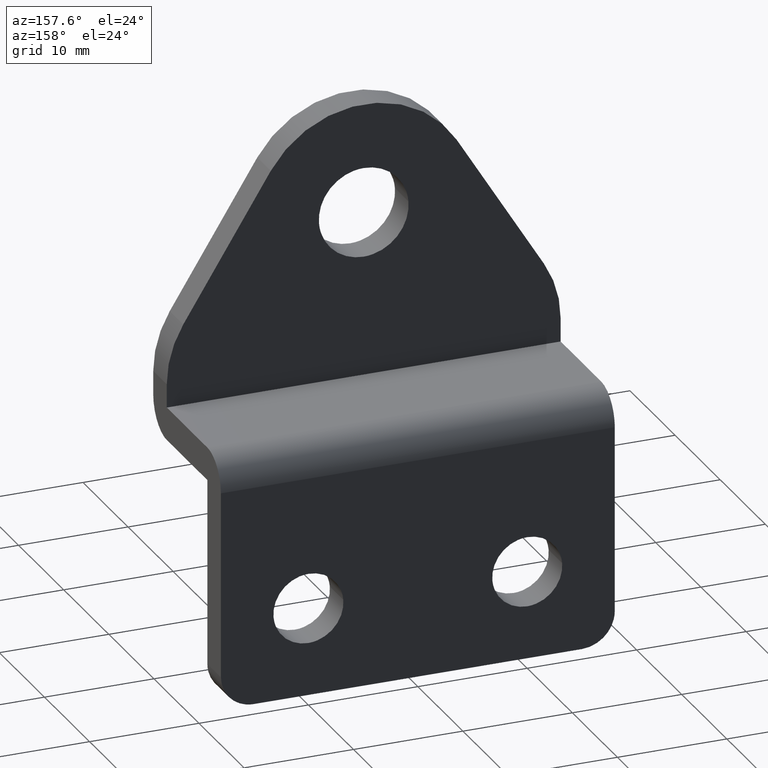
[diagram: clean part render]
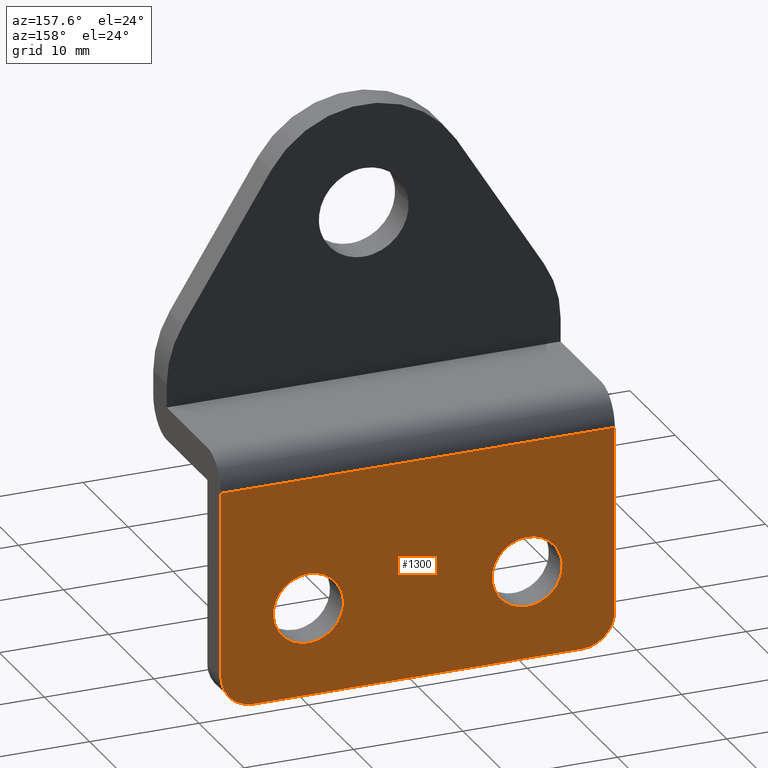
[diagram: same view with one face highlighted and labeled with its STEP entity id]
A machine part, auxiliary view. The second image highlights one B-rep face of the part: STEP entity #1300.
In plain terms, the highlighted face is a freeform B-spline surface patch.
Its self-contained STEP definition (entity closure, byte-faithful):
#79=CARTESIAN_POINT('',(-13.190142467944270,-5.551115E-017,8.251069106351242));
#80=VERTEX_POINT('',#79);
#86=CARTESIAN_POINT('',(-10.000007000000000,0.0,11.199999999999999));
#87=VERTEX_POINT('',#86);
#88=CARTESIAN_POINT('',(-10.000007000000000,0.0,11.199999999999999));
#89=CARTESIAN_POINT('',(-12.958056573265079,0.0,11.200000000000001));
#90=CARTESIAN_POINT('',(-13.190142467944266,-5.551115E-017,8.251069106351242));
#98=(BOUNDED_CURVE()B_SPLINE_CURVE(2,(#88,#89,#90),.UNSPECIFIED.,.F.,.U.)B_SPLINE_CURVE_WITH_KNOTS((3,3),(0.0,0.236331300630387),.UNSPECIFIED.)CURVE()GEOMETRIC_REPRESENTATION_ITEM()RATIONAL_B_SPLINE_CURVE((1.0,0.723120658607984,0.969723356166850))REPRESENTATION_ITEM(''));
#99=EDGE_CURVE('',#87,#80,#98,.T.);
#101=CARTESIAN_POINT('',(-6.809871532055734,-5.551115E-017,7.748930893648756));
#102=VERTEX_POINT('',#101);
#103=CARTESIAN_POINT('',(-6.809871532055734,-5.551115E-017,7.748930893648756));
#104=CARTESIAN_POINT('',(-6.800007000000000,0.0,7.874271657553215));
#105=CARTESIAN_POINT('',(-6.800007000000000,0.0,8.0));
#106=CARTESIAN_POINT('',(-6.800007000000001,0.0,11.199999999999999));
#107=CARTESIAN_POINT('',(-10.000007000000000,0.0,11.199999999999999));
#115=(BOUNDED_CURVE()B_SPLINE_CURVE(2,(#103,#104,#105,#106,#107),.UNSPECIFIED.,.F.,.U.)B_SPLINE_CURVE_WITH_KNOTS((3,2,3),(0.736331300630388,0.750000000000000,1.0),.UNSPECIFIED.)CURVE()GEOMETRIC_REPRESENTATION_ITEM()RATIONAL_B_SPLINE_CURVE((0.969723356166850,0.983986122578563,1.0,0.707106781186548,1.0))REPRESENTATION_ITEM(''));
#116=EDGE_CURVE('',#102,#87,#115,.T.);
#192=CARTESIAN_POINT('',(-10.000007000000000,0.0,4.800000000000001));
#193=VERTEX_POINT('',#192);
#194=CARTESIAN_POINT('',(-10.000007000000000,0.0,4.800000000000001));
#195=CARTESIAN_POINT('',(-7.041957426734915,0.0,4.800000000000001));
#196=CARTESIAN_POINT('',(-6.809871532055734,-5.551115E-017,7.748930893648756));
#204=(BOUNDED_CURVE()B_SPLINE_CURVE(2,(#194,#195,#196),.UNSPECIFIED.,.F.,.U.)B_SPLINE_CURVE_WITH_KNOTS((3,3),(0.500000000000000,0.736331300630388),.UNSPECIFIED.)CURVE()GEOMETRIC_REPRESENTATION_ITEM()RATIONAL_B_SPLINE_CURVE((1.0,0.723120658607984,0.969723356166851))REPRESENTATION_ITEM(''));
#205=EDGE_CURVE('',#193,#102,#204,.T.);
#207=CARTESIAN_POINT('',(-13.190142467944264,-5.551115E-017,8.251069106351242));
#208=CARTESIAN_POINT('',(-13.200006999999998,0.0,8.125728342446784));
#209=CARTESIAN_POINT('',(-13.200006999999999,0.0,8.0));
#210=CARTESIAN_POINT('',(-13.200006999999999,0.0,4.800000000000001));
#211=CARTESIAN_POINT('',(-10.000007000000000,0.0,4.800000000000001));
#219=(BOUNDED_CURVE()B_SPLINE_CURVE(2,(#207,#208,#209,#210,#211),.UNSPECIFIED.,.F.,.U.)B_SPLINE_CURVE_WITH_KNOTS((3,2,3),(0.236331300630388,0.250000000000000,0.500000000000000),.UNSPECIFIED.)CURVE()GEOMETRIC_REPRESENTATION_ITEM()RATIONAL_B_SPLINE_CURVE((0.969723356166850,0.983986122578563,1.0,0.707106781186548,1.0))REPRESENTATION_ITEM(''));
#220=EDGE_CURVE('',#80,#193,#219,.T.);
#261=CARTESIAN_POINT('',(6.809864532055734,-5.551115E-017,8.251069106351244));
#262=VERTEX_POINT('',#261);
#268=CARTESIAN_POINT('',(10.0,0.0,11.199999999999999));
#269=VERTEX_POINT('',#268);
#270=CARTESIAN_POINT('',(10.0,0.0,11.199999999999999));
#271=CARTESIAN_POINT('',(7.041950426734925,0.0,11.199999999999999));
#272=CARTESIAN_POINT('',(6.809864532055734,-5.551115E-017,8.251069106351244));
#280=(BOUNDED_CURVE()B_SPLINE_CURVE(2,(#270,#271,#272),.UNSPECIFIED.,.F.,.U.)B_SPLINE_CURVE_WITH_KNOTS((3,3),(0.0,0.236331300630387),.UNSPECIFIED.)CURVE()GEOMETRIC_REPRESENTATION_ITEM()RATIONAL_B_SPLINE_CURVE((1.0,0.723120658607984,0.969723356166850))REPRESENTATION_ITEM(''));
#281=EDGE_CURVE('',#269,#262,#280,.T.);
#283=CARTESIAN_POINT('',(13.190135467944270,-5.551115E-017,7.748930893648756));
#284=VERTEX_POINT('',#283);
#285=CARTESIAN_POINT('',(13.190135467944268,-5.551115E-017,7.748930893648756));
#286=CARTESIAN_POINT('',(13.199999999999996,0.0,7.874271657553215));
#287=CARTESIAN_POINT('',(13.199999999999999,0.0,8.0));
#288=CARTESIAN_POINT('',(13.199999999999998,0.0,11.199999999999999));
#289=CARTESIAN_POINT('',(10.0,0.0,11.199999999999999));
#297=(BOUNDED_CURVE()B_SPLINE_CURVE(2,(#285,#286,#287,#288,#289),.UNSPECIFIED.,.F.,.U.)B_SPLINE_CURVE_WITH_KNOTS((3,2,3),(0.736331300630388,0.750000000000000,1.0),.UNSPECIFIED.)CURVE()GEOMETRIC_REPRESENTATION_ITEM()RATIONAL_B_SPLINE_CURVE((0.969723356166850,0.983986122578563,1.0,0.707106781186548,1.0))REPRESENTATION_ITEM(''));
#298=EDGE_CURVE('',#284,#269,#297,.T.);
#374=CARTESIAN_POINT('',(10.0,0.0,4.800000000000001));
#375=VERTEX_POINT('',#374);
#376=CARTESIAN_POINT('',(10.0,0.0,4.800000000000001));
#377=CARTESIAN_POINT('',(12.958049573265084,0.0,4.800000000000001));
#378=CARTESIAN_POINT('',(13.190135467944266,-5.551115E-017,7.748930893648756));
#386=(BOUNDED_CURVE()B_SPLINE_CURVE(2,(#376,#377,#378),.UNSPECIFIED.,.F.,.U.)B_SPLINE_CURVE_WITH_KNOTS((3,3),(0.500000000000000,0.736331300630388),.UNSPECIFIED.)CURVE()GEOMETRIC_REPRESENTATION_ITEM()RATIONAL_B_SPLINE_CURVE((1.0,0.723120658607984,0.969723356166851))REPRESENTATION_ITEM(''));
#387=EDGE_CURVE('',#375,#284,#386,.T.);
#389=CARTESIAN_POINT('',(6.809864532055734,-5.551115E-017,8.251069106351244));
#390=CARTESIAN_POINT('',(6.800000000000001,0.0,8.125728342446784));
#391=CARTESIAN_POINT('',(6.800000000000001,0.0,8.0));
#392=CARTESIAN_POINT('',(6.800000000000002,0.0,4.800000000000001));
#393=CARTESIAN_POINT('',(10.0,0.0,4.800000000000001));
#401=(BOUNDED_CURVE()B_SPLINE_CURVE(2,(#389,#390,#391,#392,#393),.UNSPECIFIED.,.F.,.U.)B_SPLINE_CURVE_WITH_KNOTS((3,2,3),(0.236331300630387,0.250000000000000,0.500000000000000),.UNSPECIFIED.)CURVE()GEOMETRIC_REPRESENTATION_ITEM()RATIONAL_B_SPLINE_CURVE((0.969723356166850,0.983986122578563,1.0,0.707106781186548,1.0))REPRESENTATION_ITEM(''));
#402=EDGE_CURVE('',#262,#375,#401,.T.);
#848=CARTESIAN_POINT('',(15.0,0.0,0.0));
#849=VERTEX_POINT('',#848);
#855=CARTESIAN_POINT('',(18.0,0.0,3.0));
#856=VERTEX_POINT('',#855);
#857=CARTESIAN_POINT('',(18.0,0.0,3.0));
#858=CARTESIAN_POINT('',(18.000000000000007,0.0,0.0));
#859=CARTESIAN_POINT('',(15.0,0.0,0.0));
#867=(BOUNDED_CURVE()B_SPLINE_CURVE(2,(#857,#858,#859),.UNSPECIFIED.,.F.,.U.)CURVE()GEOMETRIC_REPRESENTATION_ITEM()QUASI_UNIFORM_CURVE()RATIONAL_B_SPLINE_CURVE((1.0,0.707106781186548,1.0))REPRESENTATION_ITEM(''));
#868=EDGE_CURVE('',#856,#849,#867,.T.);
#909=CARTESIAN_POINT('',(-18.000007000000000,0.0,3.0));
#910=VERTEX_POINT('',#909);
#916=CARTESIAN_POINT('',(-15.000007000000050,0.0,0.0));
#917=VERTEX_POINT('',#916);
#918=CARTESIAN_POINT('',(-15.000007000000050,0.0,0.0));
#919=CARTESIAN_POINT('',(-18.000007000000050,0.0,0.0));
#920=CARTESIAN_POINT('',(-18.000007000000050,0.0,3.0));
#928=(BOUNDED_CURVE()B_SPLINE_CURVE(2,(#918,#919,#920),.UNSPECIFIED.,.F.,.U.)CURVE()GEOMETRIC_REPRESENTATION_ITEM()QUASI_UNIFORM_CURVE()RATIONAL_B_SPLINE_CURVE((1.0,0.707106781186548,1.0))REPRESENTATION_ITEM(''));
#929=EDGE_CURVE('',#917,#910,#928,.T.);
#1016=CARTESIAN_POINT('',(-18.000007000000000,0.0,20.0));
#1017=VERTEX_POINT('',#1016);
#1038=CARTESIAN_POINT('',(18.0,0.0,20.0));
#1039=VERTEX_POINT('',#1038);
#1053=CARTESIAN_POINT('',(-18.000007000000000,0.0,20.0));
#1054=CARTESIAN_POINT('',(18.0,0.0,20.0));
#1055=QUASI_UNIFORM_CURVE('',1,(#1053,#1054),.UNSPECIFIED.,.F.,.U.);
#1056=EDGE_CURVE('',#1017,#1039,#1055,.T.);
#1093=CARTESIAN_POINT('',(18.0,0.0,3.0));
#1094=CARTESIAN_POINT('',(18.0,0.0,20.0));
#1095=QUASI_UNIFORM_CURVE('',1,(#1093,#1094),.UNSPECIFIED.,.F.,.U.);
#1096=EDGE_CURVE('',#856,#1039,#1095,.T.);
#1131=CARTESIAN_POINT('',(-18.000007000000000,0.0,3.0));
#1132=CARTESIAN_POINT('',(-18.000007000000000,0.0,20.0));
#1133=QUASI_UNIFORM_CURVE('',1,(#1131,#1132),.UNSPECIFIED.,.F.,.U.);
#1134=EDGE_CURVE('',#910,#1017,#1133,.T.);
#1196=CARTESIAN_POINT('',(-15.000007000000050,0.0,0.0));
#1197=CARTESIAN_POINT('',(15.0,0.0,0.0));
#1198=QUASI_UNIFORM_CURVE('',1,(#1196,#1197),.UNSPECIFIED.,.F.,.U.);
#1199=EDGE_CURVE('',#917,#849,#1198,.T.);
#1275=CARTESIAN_POINT('',(-19.798207955759619,0.0,-0.998999961236120));
#1276=CARTESIAN_POINT('',(-19.798207955759619,0.0,20.999000497677919));
#1277=CARTESIAN_POINT('',(19.798201277624759,0.0,-0.998999961236120));
#1278=CARTESIAN_POINT('',(19.798201277624759,0.0,20.999000497677919));
#1279=B_SPLINE_SURFACE_WITH_KNOTS('',1,1,((#1275,#1277),(#1276,#1278)),.UNSPECIFIED.,.F.,.F.,.U.,(2,2),(2,2),(0.0,21.998000458914039),(0.0,39.596409233384378),.UNSPECIFIED.);
#1280=ORIENTED_EDGE('',*,*,#1199,.F.);
#1281=ORIENTED_EDGE('',*,*,#929,.T.);
#1282=ORIENTED_EDGE('',*,*,#1134,.T.);
#1283=ORIENTED_EDGE('',*,*,#1056,.T.);
#1284=ORIENTED_EDGE('',*,*,#1096,.F.);
#1285=ORIENTED_EDGE('',*,*,#868,.T.);
#1286=EDGE_LOOP('',(#1280,#1281,#1282,#1283,#1284,#1285));
#1287=FACE_OUTER_BOUND('',#1286,.T.);
#1288=ORIENTED_EDGE('',*,*,#387,.T.);
#1289=ORIENTED_EDGE('',*,*,#298,.T.);
#1290=ORIENTED_EDGE('',*,*,#281,.T.);
#1291=ORIENTED_EDGE('',*,*,#402,.T.);
#1292=EDGE_LOOP('',(#1288,#1289,#1290,#1291));
#1293=FACE_BOUND('',#1292,.T.);
#1294=ORIENTED_EDGE('',*,*,#205,.T.);
#1295=ORIENTED_EDGE('',*,*,#116,.T.);
#1296=ORIENTED_EDGE('',*,*,#99,.T.);
#1297=ORIENTED_EDGE('',*,*,#220,.T.);
#1298=EDGE_LOOP('',(#1294,#1295,#1296,#1297));
#1299=FACE_BOUND('',#1298,.T.);
#1300=ADVANCED_FACE('',(#1287,#1293,#1299),#1279,.T.);